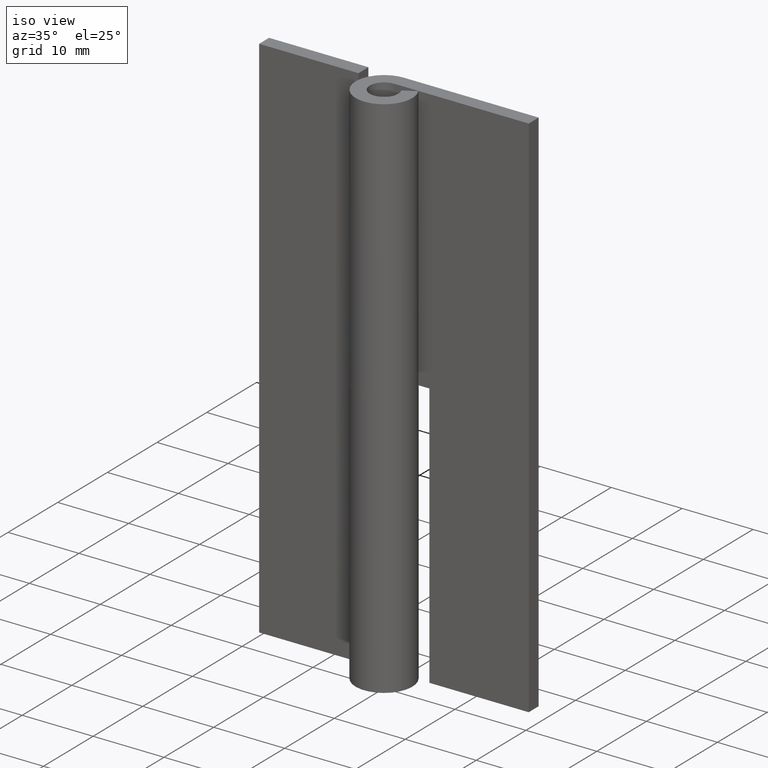
[diagram: clean part render]
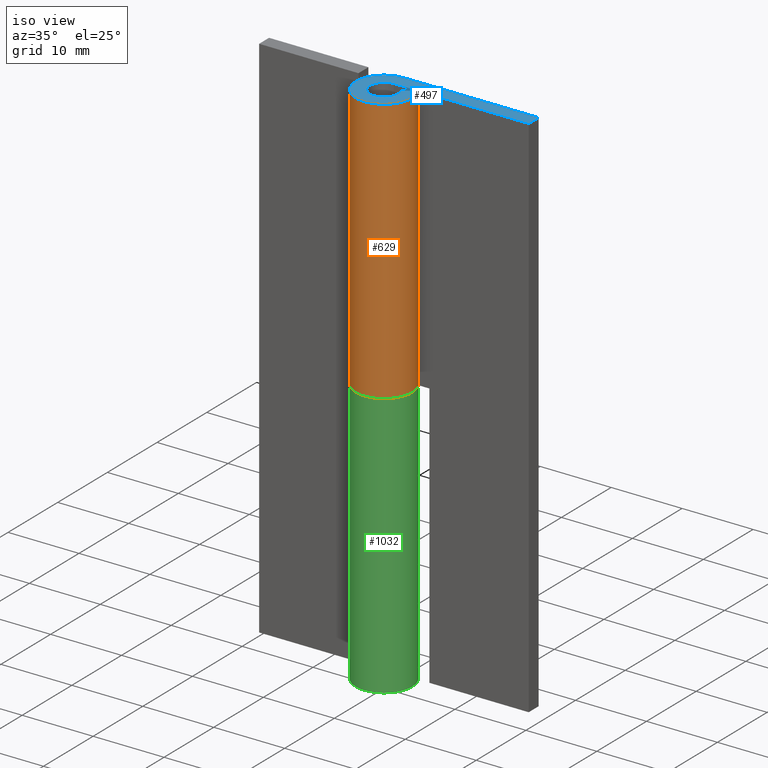
[diagram: same view with three faces highlighted in distinct colors, each labeled with its STEP entity id]
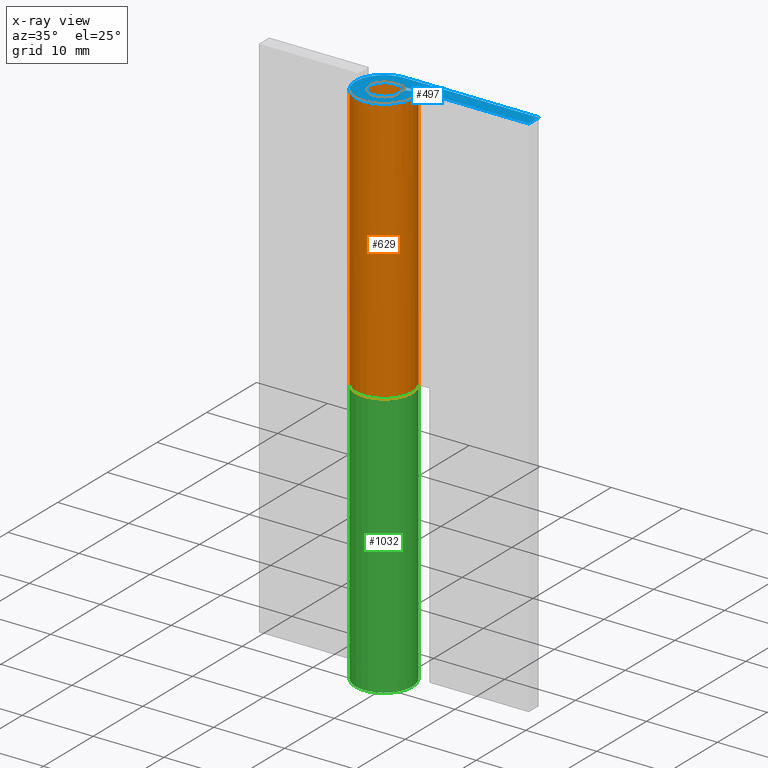
[diagram: x-ray of the same camera — body ghosted, the three highlighted faces saturated]
A machine part, iso view with three faces highlighted in distinct colors.
The next image is the same camera in x-ray (body ghosted, the three faces saturated) — at least one of them is partly hidden behind the body in this view.
Their STEP definitions:

[orange] entity #629 — the highlighted face is a freeform B-spline surface patch.
#355=CARTESIAN_POINT('',(0.0,4.0,37.500000000000000));
#356=VERTEX_POINT('',#355);
#391=CARTESIAN_POINT('',(3.492491947020065,1.950000000000000,37.500000000000000));
#392=VERTEX_POINT('',#391);
#398=CARTESIAN_POINT('',(0.0,4.0,37.500000000000000));
#399=CARTESIAN_POINT('',(-3.057904543451451,4.000000000000001,37.500000000000000));
#400=CARTESIAN_POINT('',(-3.859957943328416,1.049154266891131,37.500000000000000));
#401=CARTESIAN_POINT('',(-4.662011343205381,-1.901691466217739,37.500000000000000));
#402=CARTESIAN_POINT('',(-2.024845673131660,-3.449637662132068,37.500000000000000));
#403=CARTESIAN_POINT('',(0.612319996942062,-4.997583858046397,37.500000000000000));
#404=CARTESIAN_POINT('',(2.797770204447354,-2.858755303118232,37.500000000000000));
#405=CARTESIAN_POINT('',(4.983220411952645,-0.719926748190068,37.500000000000000));
#406=CARTESIAN_POINT('',(3.492491947020066,1.949999999999997,37.500000000000000));
#414=(BOUNDED_CURVE()B_SPLINE_CURVE(2,(#398,#399,#400,#401,#402,#403,#404,#405,#406),.UNSPECIFIED.,.F.,.U.)B_SPLINE_CURVE_WITH_KNOTS((3,2,2,2,3),(0.0,0.250000000000000,0.500000000000000,0.750000000000000,1.0),.UNSPECIFIED.)CURVE()GEOMETRIC_REPRESENTATION_ITEM()RATIONAL_B_SPLINE_CURVE((1.0,0.794445897063728,1.0,0.794445897063728,1.0,0.794445897063728,1.0,0.794445897063728,1.0))REPRESENTATION_ITEM(''));
#415=EDGE_CURVE('',#356,#392,#414,.T.);
#434=CARTESIAN_POINT('',(0.0,4.0,75.0));
#435=VERTEX_POINT('',#434);
#441=CARTESIAN_POINT('',(3.492491947020065,1.950000000000000,75.0));
#442=VERTEX_POINT('',#441);
#443=CARTESIAN_POINT('',(3.492491947020065,1.949999999999999,75.0));
#444=CARTESIAN_POINT('',(4.983220411952646,-0.719926748190065,75.0));
#445=CARTESIAN_POINT('',(2.797770204447355,-2.858755303118231,75.0));
#446=CARTESIAN_POINT('',(0.612319996942063,-4.997583858046395,75.0));
#447=CARTESIAN_POINT('',(-2.024845673131658,-3.449637662132068,75.0));
#448=CARTESIAN_POINT('',(-4.662011343205381,-1.901691466217742,75.0));
#449=CARTESIAN_POINT('',(-3.859957943328416,1.049154266891129,75.0));
#450=CARTESIAN_POINT('',(-3.057904543451453,4.0,75.0));
#451=CARTESIAN_POINT('',(0.0,4.0,75.0));
#459=(BOUNDED_CURVE()B_SPLINE_CURVE(2,(#443,#444,#445,#446,#447,#448,#449,#450,#451),.UNSPECIFIED.,.F.,.U.)B_SPLINE_CURVE_WITH_KNOTS((3,2,2,2,3),(0.0,0.250000000000000,0.500000000000000,0.750000000000000,1.0),.UNSPECIFIED.)CURVE()GEOMETRIC_REPRESENTATION_ITEM()RATIONAL_B_SPLINE_CURVE((1.0,0.794445897063728,1.0,0.794445897063728,1.0,0.794445897063728,1.0,0.794445897063728,1.0))REPRESENTATION_ITEM(''));
#460=EDGE_CURVE('',#442,#435,#459,.T.);
#589=CARTESIAN_POINT('',(3.492491947020065,1.950000000000000,37.500000000000000));
#590=CARTESIAN_POINT('',(3.492491947020065,1.950000000000000,75.0));
#591=QUASI_UNIFORM_CURVE('',1,(#589,#590),.UNSPECIFIED.,.F.,.U.);
#592=EDGE_CURVE('',#392,#442,#591,.T.);
#597=CARTESIAN_POINT('',(3.410560657416367,2.089994258863795,36.562499999999993));
#598=CARTESIAN_POINT('',(3.410560657416367,2.089994258863795,75.960937500000014));
#599=CARTESIAN_POINT('',(5.991488624861849,-2.121697399169993,36.562499999999993));
#600=CARTESIAN_POINT('',(5.991488624861849,-2.121697399169993,75.960937500000014));
#601=CARTESIAN_POINT('',(1.335227436935084,-3.770565964368712,36.562499999999993));
#602=CARTESIAN_POINT('',(1.335227436935084,-3.770565964368712,75.960937500000014));
#603=CARTESIAN_POINT('',(-3.321033750991682,-5.419434529567431,36.562499999999993));
#604=CARTESIAN_POINT('',(-3.321033750991682,-5.419434529567431,75.960937500000014));
#605=CARTESIAN_POINT('',(-3.965779445495240,-0.522104768880208,36.562499999999993));
#606=CARTESIAN_POINT('',(-3.965779445495240,-0.522104768880208,75.960937500000014));
#607=CARTESIAN_POINT('',(-4.610525139998799,4.375224991807015,36.562499999999993));
#608=CARTESIAN_POINT('',(-4.610525139998799,4.375224991807015,75.960937500000014));
#609=CARTESIAN_POINT('',(0.313836382911377,3.987669334932510,36.562499999999993));
#610=CARTESIAN_POINT('',(0.313836382911377,3.987669334932510,75.960937500000014));
#618=(BOUNDED_SURFACE()B_SPLINE_SURFACE(1,2,((#597,#599,#601,#603,#605,#607,#609),(#598,#600,#602,#604,#606,#608,#610)),.UNSPECIFIED.,.F.,.F.,.U.)B_SPLINE_SURFACE_WITH_KNOTS((2,2),(3,2,2,3),(0.0,39.398437500000021),(0.0,7.631608523170559,15.263217046341120,22.894825569511681),.UNSPECIFIED.)GEOMETRIC_REPRESENTATION_ITEM()RATIONAL_B_SPLINE_SURFACE(((1.0,0.629320391049838,1.0,0.629320391049838,1.0,0.629320391049838,1.0),(1.0,0.629320391049838,1.0,0.629320391049838,1.0,0.629320391049838,1.0)))REPRESENTATION_ITEM('')SURFACE());
#619=CARTESIAN_POINT('',(0.0,4.0,37.500000000000000));
#620=CARTESIAN_POINT('',(0.0,4.0,75.0));
#621=QUASI_UNIFORM_CURVE('',1,(#619,#620),.UNSPECIFIED.,.F.,.U.);
#622=EDGE_CURVE('',#356,#435,#621,.T.);
#623=ORIENTED_EDGE('',*,*,#622,.F.);
#624=ORIENTED_EDGE('',*,*,#415,.T.);
#625=ORIENTED_EDGE('',*,*,#592,.T.);
#626=ORIENTED_EDGE('',*,*,#460,.T.);
#627=EDGE_LOOP('',(#623,#624,#625,#626));
#628=FACE_OUTER_BOUND('',#627,.T.);
#629=ADVANCED_FACE('',(#628),#618,.T.);

[blue] entity #497 — the highlighted face is a freeform B-spline surface patch.
#420=CARTESIAN_POINT('',(-5.148811061724082,-4.399443773540844,75.0));
#421=CARTESIAN_POINT('',(20.148855379252549,-4.399443773540844,75.0));
#422=CARTESIAN_POINT('',(-5.148811061724082,4.399592767535347,75.0));
#423=CARTESIAN_POINT('',(20.148855379252549,4.399592767535347,75.0));
#424=B_SPLINE_SURFACE_WITH_KNOTS('',1,1,((#420,#422),(#421,#423)),.UNSPECIFIED.,.F.,.F.,.U.,(2,2),(2,2),(0.0,25.297666440976631),(0.0,8.799036541076191),.UNSPECIFIED.);
#425=CARTESIAN_POINT('',(19.000007999999902,2.0,75.0));
#426=VERTEX_POINT('',#425);
#427=CARTESIAN_POINT('',(19.000007999999902,4.0,75.0));
#428=VERTEX_POINT('',#427);
#429=CARTESIAN_POINT('',(19.000007999999902,2.0,75.0));
#430=CARTESIAN_POINT('',(19.000007999999902,4.0,75.0));
#431=QUASI_UNIFORM_CURVE('',1,(#429,#430),.UNSPECIFIED.,.F.,.U.);
#432=EDGE_CURVE('',#426,#428,#431,.T.);
#433=ORIENTED_EDGE('',*,*,#432,.T.);
#434=CARTESIAN_POINT('',(0.0,4.0,75.0));
#435=VERTEX_POINT('',#434);
#436=CARTESIAN_POINT('',(19.000007999999902,4.0,75.0));
#437=CARTESIAN_POINT('',(0.0,4.0,75.0));
#438=QUASI_UNIFORM_CURVE('',1,(#436,#437),.UNSPECIFIED.,.F.,.U.);
#439=EDGE_CURVE('',#428,#435,#438,.T.);
#440=ORIENTED_EDGE('',*,*,#439,.T.);
#441=CARTESIAN_POINT('',(3.492491947020065,1.950000000000000,75.0));
#442=VERTEX_POINT('',#441);
#443=CARTESIAN_POINT('',(3.492491947020065,1.949999999999999,75.0));
#444=CARTESIAN_POINT('',(4.983220411952646,-0.719926748190065,75.0));
#445=CARTESIAN_POINT('',(2.797770204447355,-2.858755303118231,75.0));
#446=CARTESIAN_POINT('',(0.612319996942063,-4.997583858046395,75.0));
#447=CARTESIAN_POINT('',(-2.024845673131658,-3.449637662132068,75.0));
#448=CARTESIAN_POINT('',(-4.662011343205381,-1.901691466217742,75.0));
#449=CARTESIAN_POINT('',(-3.859957943328416,1.049154266891129,75.0));
#450=CARTESIAN_POINT('',(-3.057904543451453,4.0,75.0));
#451=CARTESIAN_POINT('',(0.0,4.0,75.0));
#459=(BOUNDED_CURVE()B_SPLINE_CURVE(2,(#443,#444,#445,#446,#447,#448,#449,#450,#451),.UNSPECIFIED.,.F.,.U.)B_SPLINE_CURVE_WITH_KNOTS((3,2,2,2,3),(0.0,0.250000000000000,0.500000000000000,0.750000000000000,1.0),.UNSPECIFIED.)CURVE()GEOMETRIC_REPRESENTATION_ITEM()RATIONAL_B_SPLINE_CURVE((1.0,0.794445897063728,1.0,0.794445897063728,1.0,0.794445897063728,1.0,0.794445897063728,1.0))REPRESENTATION_ITEM(''));
#460=EDGE_CURVE('',#442,#435,#459,.T.);
#461=ORIENTED_EDGE('',*,*,#460,.F.);
#462=CARTESIAN_POINT('',(1.746245973510030,0.975000000000000,75.0));
#463=VERTEX_POINT('',#462);
#464=CARTESIAN_POINT('',(3.492491947020065,1.950000000000000,75.0));
#465=CARTESIAN_POINT('',(1.746245973510030,0.975000000000000,75.0));
#466=QUASI_UNIFORM_CURVE('',1,(#464,#465),.UNSPECIFIED.,.F.,.U.);
#467=EDGE_CURVE('',#442,#463,#466,.T.);
#468=ORIENTED_EDGE('',*,*,#467,.T.);
#469=CARTESIAN_POINT('',(-3.673819E-016,2.0,75.0));
#470=VERTEX_POINT('',#469);
#471=CARTESIAN_POINT('',(1.746245973510032,0.975000000000001,75.0));
#472=CARTESIAN_POINT('',(2.491610205976324,-0.359963374095030,75.0));
#473=CARTESIAN_POINT('',(1.398885102223679,-1.429377651559114,75.0));
#474=CARTESIAN_POINT('',(0.306159998471033,-2.498791929023199,75.0));
#475=CARTESIAN_POINT('',(-1.012422836565829,-1.724818831066034,75.0));
#476=CARTESIAN_POINT('',(-2.331005671602691,-0.950845733108871,75.0));
#477=CARTESIAN_POINT('',(-1.929978971664208,0.524577133445564,75.0));
#478=CARTESIAN_POINT('',(-1.528952271725726,2.000000000000000,75.0));
#479=CARTESIAN_POINT('',(0.0,2.0,75.0));
#487=(BOUNDED_CURVE()B_SPLINE_CURVE(2,(#471,#472,#473,#474,#475,#476,#477,#478,#479),.UNSPECIFIED.,.F.,.U.)B_SPLINE_CURVE_WITH_KNOTS((3,2,2,2,3),(0.0,0.250000000000000,0.500000000000000,0.750000000000000,1.0),.UNSPECIFIED.)CURVE()GEOMETRIC_REPRESENTATION_ITEM()RATIONAL_B_SPLINE_CURVE((1.0,0.794445897063728,1.0,0.794445897063728,1.0,0.794445897063728,1.0,0.794445897063728,1.0))REPRESENTATION_ITEM(''));
#488=EDGE_CURVE('',#463,#470,#487,.T.);
#489=ORIENTED_EDGE('',*,*,#488,.T.);
#490=CARTESIAN_POINT('',(-3.673819E-016,2.0,75.0));
#491=CARTESIAN_POINT('',(19.000007999999902,2.0,75.0));
#492=QUASI_UNIFORM_CURVE('',1,(#490,#491),.UNSPECIFIED.,.F.,.U.);
#493=EDGE_CURVE('',#470,#426,#492,.T.);
#494=ORIENTED_EDGE('',*,*,#493,.T.);
#495=EDGE_LOOP('',(#433,#440,#461,#468,#489,#494));
#496=FACE_OUTER_BOUND('',#495,.T.);
#497=ADVANCED_FACE('',(#496),#424,.T.);

[green] entity #1032 — the highlighted face is a freeform B-spline surface patch.
#742=CARTESIAN_POINT('',(0.0,4.0,37.500000000000000));
#743=VERTEX_POINT('',#742);
#778=CARTESIAN_POINT('',(-3.492491947020070,1.950000000000000,37.500000000000000));
#779=VERTEX_POINT('',#778);
#785=CARTESIAN_POINT('',(0.0,4.0,37.500000000000000));
#786=CARTESIAN_POINT('',(3.057904543451451,4.000000000000001,37.500000000000000));
#787=CARTESIAN_POINT('',(3.859957943328416,1.049154266891131,37.500000000000000));
#788=CARTESIAN_POINT('',(4.662011343205381,-1.901691466217739,37.500000000000000));
#789=CARTESIAN_POINT('',(2.024845673131660,-3.449637662132068,37.500000000000000));
#790=CARTESIAN_POINT('',(-0.612319996942062,-4.997583858046397,37.500000000000000));
#791=CARTESIAN_POINT('',(-2.797770204447354,-2.858755303118232,37.500000000000000));
#792=CARTESIAN_POINT('',(-4.983220411952645,-0.719926748190068,37.500000000000000));
#793=CARTESIAN_POINT('',(-3.492491947020066,1.949999999999997,37.500000000000000));
#801=(BOUNDED_CURVE()B_SPLINE_CURVE(2,(#785,#786,#787,#788,#789,#790,#791,#792,#793),.UNSPECIFIED.,.F.,.U.)B_SPLINE_CURVE_WITH_KNOTS((3,2,2,2,3),(0.0,0.250000000000000,0.500000000000000,0.750000000000000,1.0),.UNSPECIFIED.)CURVE()GEOMETRIC_REPRESENTATION_ITEM()RATIONAL_B_SPLINE_CURVE((1.0,0.794445897063728,1.0,0.794445897063728,1.0,0.794445897063728,1.0,0.794445897063728,1.0))REPRESENTATION_ITEM(''));
#802=EDGE_CURVE('',#743,#779,#801,.T.);
#842=CARTESIAN_POINT('',(-7.347638E-016,4.0,0.0));
#843=VERTEX_POINT('',#842);
#849=CARTESIAN_POINT('',(-3.492491947020070,1.950000000000000,0.0));
#850=VERTEX_POINT('',#849);
#851=CARTESIAN_POINT('',(0.0,4.0,0.0));
#852=CARTESIAN_POINT('',(3.057904543451449,4.000000000000001,0.0));
#853=CARTESIAN_POINT('',(3.859957943328416,1.049154266891131,0.0));
#854=CARTESIAN_POINT('',(4.662011343205382,-1.901691466217738,0.0));
#855=CARTESIAN_POINT('',(2.024845673131661,-3.449637662132068,0.0));
#856=CARTESIAN_POINT('',(-0.612319996942061,-4.997583858046397,0.0));
#857=CARTESIAN_POINT('',(-2.797770204447353,-2.858755303118233,0.0));
#858=CARTESIAN_POINT('',(-4.983220411952645,-0.719926748190069,0.0));
#859=CARTESIAN_POINT('',(-3.492491947020067,1.949999999999997,0.0));
#867=(BOUNDED_CURVE()B_SPLINE_CURVE(2,(#851,#852,#853,#854,#855,#856,#857,#858,#859),.UNSPECIFIED.,.F.,.U.)B_SPLINE_CURVE_WITH_KNOTS((3,2,2,2,3),(0.0,0.250000000000000,0.500000000000000,0.750000000000000,1.0),.UNSPECIFIED.)CURVE()GEOMETRIC_REPRESENTATION_ITEM()RATIONAL_B_SPLINE_CURVE((1.0,0.794445897063728,1.0,0.794445897063728,1.0,0.794445897063728,1.0,0.794445897063728,1.0))REPRESENTATION_ITEM(''));
#868=EDGE_CURVE('',#843,#850,#867,.T.);
#989=CARTESIAN_POINT('',(-3.492491947020070,1.950000000000000,0.0));
#990=CARTESIAN_POINT('',(-3.492491947020070,1.950000000000000,37.500000000000000));
#991=QUASI_UNIFORM_CURVE('',1,(#989,#990),.UNSPECIFIED.,.F.,.U.);
#992=EDGE_CURVE('',#850,#779,#991,.T.);
#1000=CARTESIAN_POINT('',(-0.034906141993493,3.999847692256684,-0.937500000000001));
#1001=CARTESIAN_POINT('',(-0.034906141993493,3.999847692256684,38.460937500000007));
#1002=CARTESIAN_POINT('',(4.817297110311119,4.042192228533432,-0.937500000000002));
#1003=CARTESIAN_POINT('',(4.817297110311119,4.042192228533432,38.460937500000000));
#1004=CARTESIAN_POINT('',(3.933019630255817,-0.728942101968590,-0.937500000000001));
#1005=CARTESIAN_POINT('',(3.933019630255817,-0.728942101968590,38.460937500000007));
#1006=CARTESIAN_POINT('',(3.048742150200516,-5.500076432470613,-0.937500000000002));
#1007=CARTESIAN_POINT('',(3.048742150200516,-5.500076432470613,38.460937500000000));
#1008=CARTESIAN_POINT('',(-1.466004906897187,-3.721670271928098,-0.937500000000001));
#1009=CARTESIAN_POINT('',(-1.466004906897187,-3.721670271928098,38.460937500000007));
#1010=CARTESIAN_POINT('',(-5.980751963994891,-1.943264111385582,-0.937500000000002));
#1011=CARTESIAN_POINT('',(-5.980751963994891,-1.943264111385582,38.460937500000000));
#1012=CARTESIAN_POINT('',(-3.373565783251545,2.149198433387292,-0.937500000000001));
#1013=CARTESIAN_POINT('',(-3.373565783251545,2.149198433387292,38.460937500000007));
#1021=(BOUNDED_SURFACE()B_SPLINE_SURFACE(1,2,((#1000,#1002,#1004,#1006,#1008,#1010,#1012),(#1001,#1003,#1005,#1007,#1009,#1011,#1013)),.UNSPECIFIED.,.F.,.F.,.U.)B_SPLINE_SURFACE_WITH_KNOTS((2,2),(3,2,2,3),(0.0,39.398437500000007),(0.0,7.546089900339533,15.092179800679070,22.638269701018601),.UNSPECIFIED.)GEOMETRIC_REPRESENTATION_ITEM()RATIONAL_B_SPLINE_SURFACE(((1.0,0.636078220277764,1.0,0.636078220277764,1.0,0.636078220277764,1.0),(1.0,0.636078220277764,1.0,0.636078220277764,1.0,0.636078220277764,1.0)))REPRESENTATION_ITEM('')SURFACE());
#1022=CARTESIAN_POINT('',(-7.347638E-016,4.0,0.0));
#1023=CARTESIAN_POINT('',(0.0,4.0,37.500000000000000));
#1024=QUASI_UNIFORM_CURVE('',1,(#1022,#1023),.UNSPECIFIED.,.F.,.U.);
#1025=EDGE_CURVE('',#843,#743,#1024,.T.);
#1026=ORIENTED_EDGE('',*,*,#1025,.T.);
#1027=ORIENTED_EDGE('',*,*,#802,.T.);
#1028=ORIENTED_EDGE('',*,*,#992,.F.);
#1029=ORIENTED_EDGE('',*,*,#868,.F.);
#1030=EDGE_LOOP('',(#1026,#1027,#1028,#1029));
#1031=FACE_OUTER_BOUND('',#1030,.T.);
#1032=ADVANCED_FACE('',(#1031),#1021,.T.);